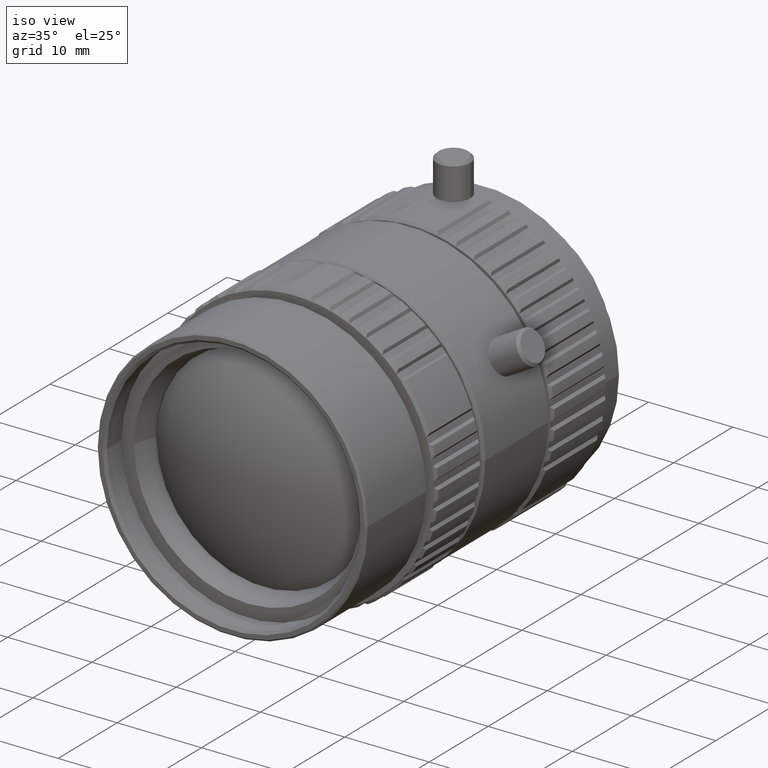
[diagram: clean part render]
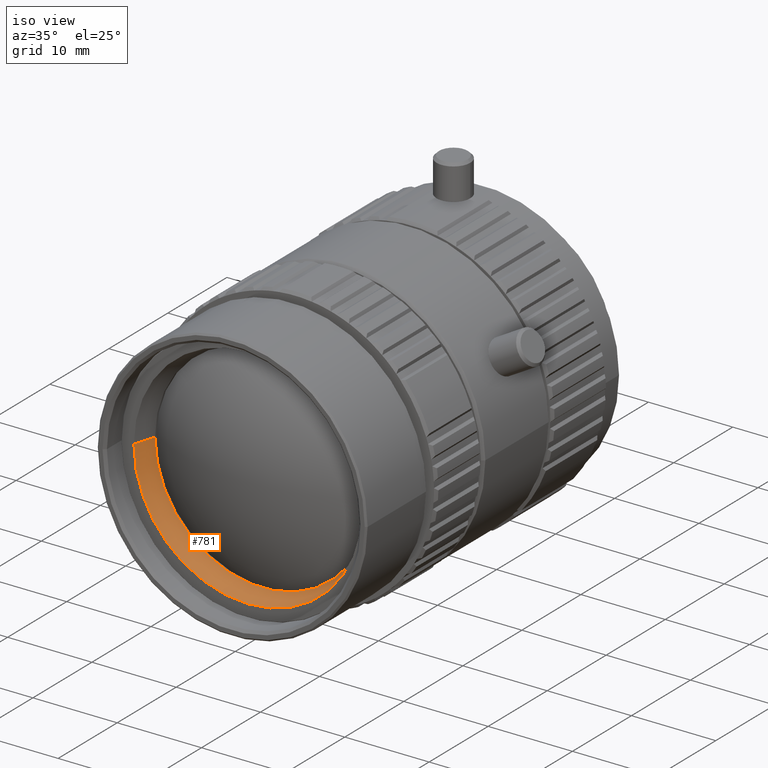
[diagram: same view with one face highlighted and labeled with its STEP entity id]
A machine part, iso view. The second image highlights one B-rep face of the part: STEP entity #781.
In plain terms, the highlighted conical surface has half-angle 16.699 deg.
Its self-contained STEP definition (entity closure, byte-faithful):
#781=ADVANCED_FACE('0:16778',(#2601),#2602,.F.);
#2601=FACE_OUTER_BOUND('',#4932,.T.);
#2602=CONICAL_SURFACE('',#4933,0.01275,0.291456794477867);
#4932=EDGE_LOOP('',(#10797,#10798,#10799,#10800));
#4933=AXIS2_PLACEMENT_3D('',#10801,#10802,#10803);
#10797=ORIENTED_EDGE('',*,*,#15881,.T.);
#10798=ORIENTED_EDGE('',*,*,#16060,.F.);
#10799=ORIENTED_EDGE('',*,*,#15883,.T.);
#10800=ORIENTED_EDGE('',*,*,#16061,.T.);
#10801=CARTESIAN_POINT('',(-2.31787568351835E-18,-0.0553810327831231,-4.8216096913689E-17));
#10802=DIRECTION('',(-0.0,-1.0,0.0));
#10803=DIRECTION('',(1.0,0.0,0.0));
#15881=EDGE_CURVE('',#19271,#19266,#19272,.T.);
#15883=EDGE_CURVE('',#19268,#19273,#19275,.T.);
#16060=EDGE_CURVE('0:18416',#19268,#19266,#19558,.T.);
#16061=EDGE_CURVE('0:18419',#19273,#19271,#19559,.T.);
#19266=VERTEX_POINT('NONE',#23962);
#19268=VERTEX_POINT('',#23965);
#19271=VERTEX_POINT('NONE',#23969);
#19272=LINE('',#23970,#23971);
#19273=VERTEX_POINT('',#23972);
#19275=LINE('',#23974,#23975);
#19558=CIRCLE('',#24389,0.01275);
#19559=CIRCLE('',#24390,0.0135);
#23962=CARTESIAN_POINT('',(0.01275,-0.0553810327831231,-4.8216096913689E-17));
#23965=CARTESIAN_POINT('',(-0.01275,-0.0553810327831231,-4.97775215826019E-17));
#23969=CARTESIAN_POINT('',(0.0135,-0.0578810327831231,-4.8216096913689E-17));
#23970=CARTESIAN_POINT('',(0.01275,-0.0553810327831231,-4.66546722447761E-17));
#23971=VECTOR('',#29550,1.0);
#23972=CARTESIAN_POINT('',(-0.0135,-0.0578810327831231,-4.98693700925379E-17));
#23974=CARTESIAN_POINT('',(-0.01275,-0.0553810327831231,-4.97775215826019E-17));
#23975=VECTOR('',#29554,1.0);
#24389=AXIS2_PLACEMENT_3D('',#29941,#29942,#29943);
#24390=AXIS2_PLACEMENT_3D('',#29944,#29945,#29946);
#29550=DIRECTION('',(-0.287347885566346,0.957826285221151,-3.51899668300585E-17));
#29554=DIRECTION('',(-0.287347885566346,-0.957826285221151,-3.51899668300585E-17));
#29941=CARTESIAN_POINT('',(-2.31787568351835E-18,-0.0553810327831231,-4.8216096913689E-17));
#29942=DIRECTION('',(0.0,-1.0,0.0));
#29943=DIRECTION('',(1.0,0.0,0.0));
#29944=CARTESIAN_POINT('',(-2.47095147774614E-18,-0.0578810327831231,-4.8216096913689E-17));
#29945=DIRECTION('',(0.0,-1.0,0.0));
#29946=DIRECTION('',(1.0,0.0,0.0));